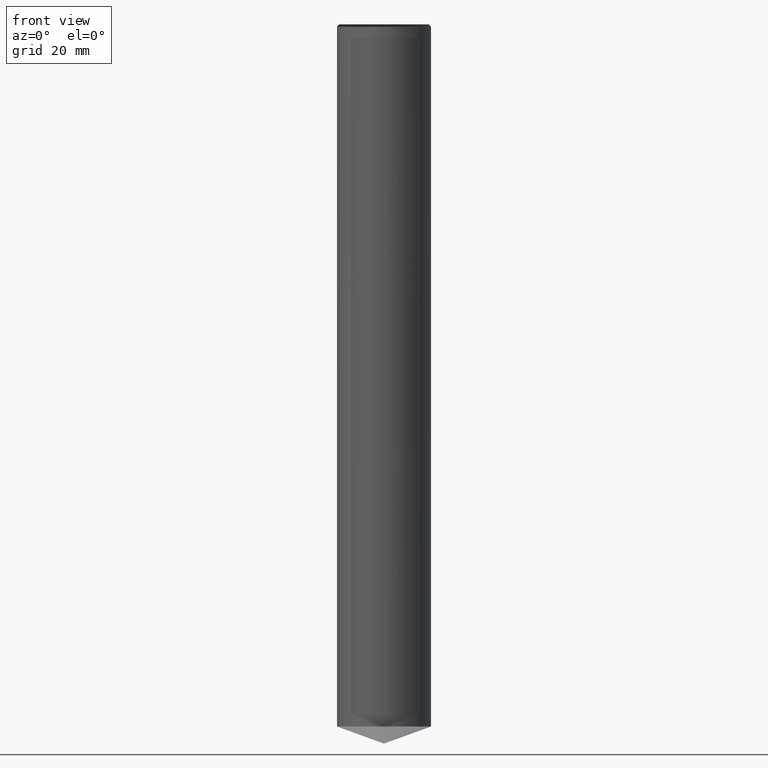
[diagram: clean part render]
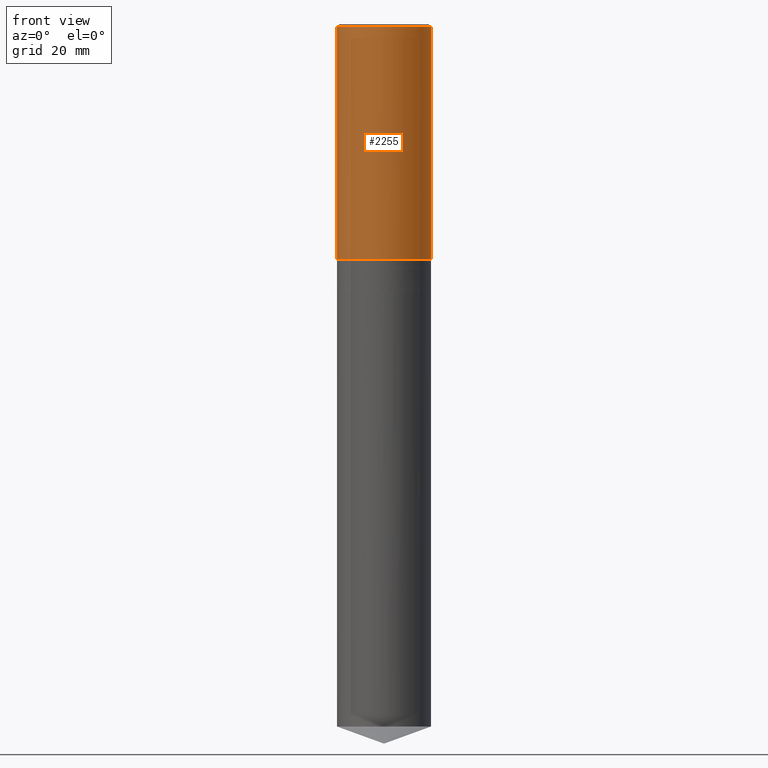
[diagram: same view with one face highlighted and labeled with its STEP entity id]
A machine part, front view. The second image highlights one B-rep face of the part: STEP entity #2255.
In plain terms, the highlighted face is a freeform B-spline surface patch.
Its self-contained STEP definition (entity closure, byte-faithful):
#1927=CARTESIAN_POINT('',(10.0,0.0,0.0));
#1931=CARTESIAN_POINT('',(-10.0,0.0,0.0));
#1932=CARTESIAN_POINT('',(10.0,0.0,49.5));
#1936=CARTESIAN_POINT('',(-10.0,0.0,49.5));
#1946=CARTESIAN_POINT('',(-10.0,-10.0,0.0));
#1947=CARTESIAN_POINT('',(0.0,-10.0,0.0));
#1948=CARTESIAN_POINT('',(10.0,-10.0,0.0));
#1949=CARTESIAN_POINT('',(-10.0,-10.0,49.5));
#1950=CARTESIAN_POINT('',(0.0,-10.0,49.5));
#1951=CARTESIAN_POINT('',(10.0,-10.0,49.5));
#2236=(
BOUNDED_SURFACE()
B_SPLINE_SURFACE(1,2,(
(#1931,#1946,#1947,#1948,#1927),
(#1936,#1949,#1950,#1951,#1932)
), .UNSPECIFIED.,.F.,.F.,.F.)
B_SPLINE_SURFACE_WITH_KNOTS((2,2),(3,2,3),(
0.0,1.0),(
0.0,0.5,1.0), .UNSPECIFIED.)
GEOMETRIC_REPRESENTATION_ITEM()
RATIONAL_B_SPLINE_SURFACE(((1.0,0.707106781187,1.0,0.707106781187,1.0),
(1.0,0.707106781187,1.0,0.707106781187,1.0)
))
REPRESENTATION_ITEM('')
SURFACE()
);
#2237=(
BOUNDED_CURVE()
B_SPLINE_CURVE(2,(#1927,#1948,#1947,#1946,#1931),.UNSPECIFIED.,.F.,.F.)
B_SPLINE_CURVE_WITH_KNOTS((3,2,3),
(0.0,0.5,1.0),.UNSPECIFIED.)
CURVE()
GEOMETRIC_REPRESENTATION_ITEM()
RATIONAL_B_SPLINE_CURVE((1.0,0.707106781187,1.0,0.707106781187,1.0))
REPRESENTATION_ITEM('')
);
#2238=(
BOUNDED_CURVE()
B_SPLINE_CURVE(1,(#1931,#1936),.UNSPECIFIED.,.F.,.F.)
B_SPLINE_CURVE_WITH_KNOTS((2,2),
(0.0,1.0),.UNSPECIFIED.)
CURVE()
GEOMETRIC_REPRESENTATION_ITEM()
RATIONAL_B_SPLINE_CURVE((1.0,1.0))
REPRESENTATION_ITEM('')
);
#2239=(
BOUNDED_CURVE()
B_SPLINE_CURVE(2,(#1936,#1949,#1950,#1951,#1932),.UNSPECIFIED.,.F.,.F.)
B_SPLINE_CURVE_WITH_KNOTS((3,2,3),
(0.0,0.5,1.0),.UNSPECIFIED.)
CURVE()
GEOMETRIC_REPRESENTATION_ITEM()
RATIONAL_B_SPLINE_CURVE((1.0,0.707106781187,1.0,0.707106781187,1.0))
REPRESENTATION_ITEM('')
);
#2240=(
BOUNDED_CURVE()
B_SPLINE_CURVE(1,(#1932,#1927),.UNSPECIFIED.,.F.,.F.)
B_SPLINE_CURVE_WITH_KNOTS((2,2),
(0.0,1.0),.UNSPECIFIED.)
CURVE()
GEOMETRIC_REPRESENTATION_ITEM()
RATIONAL_B_SPLINE_CURVE((1.0,1.0))
REPRESENTATION_ITEM('')
);
#2241=VERTEX_POINT('',#1927);
#2242=VERTEX_POINT('',#1931);
#2243=VERTEX_POINT('',#1932);
#2244=VERTEX_POINT('',#1936);
#2245=EDGE_CURVE('',#2241,#2242,#2237,.T.);
#2246=EDGE_CURVE('',#2242,#2244,#2238,.T.);
#2247=EDGE_CURVE('',#2244,#2243,#2239,.T.);
#2248=EDGE_CURVE('',#2243,#2241,#2240,.T.);
#2249=ORIENTED_EDGE('',*,*,#2245,.T.);
#2250=ORIENTED_EDGE('',*,*,#2246,.T.);
#2251=ORIENTED_EDGE('',*,*,#2247,.T.);
#2252=ORIENTED_EDGE('',*,*,#2248,.T.);
#2253=EDGE_LOOP('',(#2249,#2250,#2251,#2252));
#2254=FACE_OUTER_BOUND('',#2253,.T.);
#2255=ADVANCED_FACE('',(#2254),#2236,.T.);